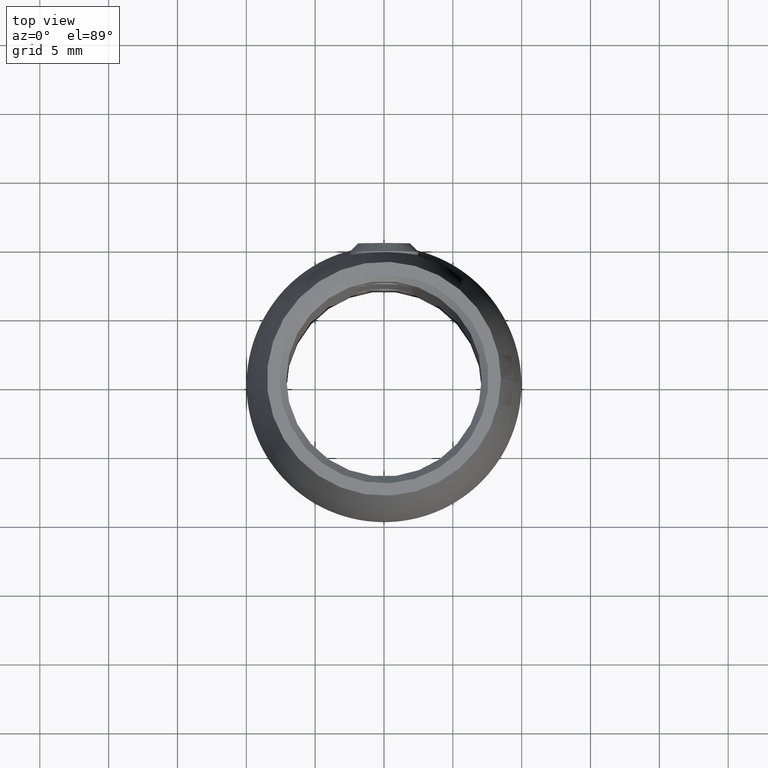
[diagram: clean part render]
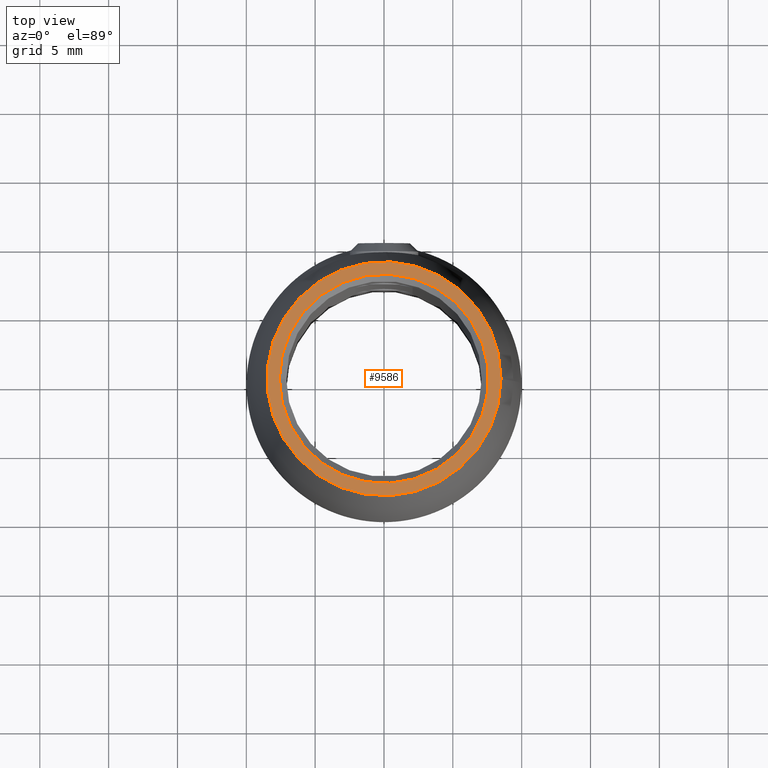
[diagram: same view with one face highlighted and labeled with its STEP entity id]
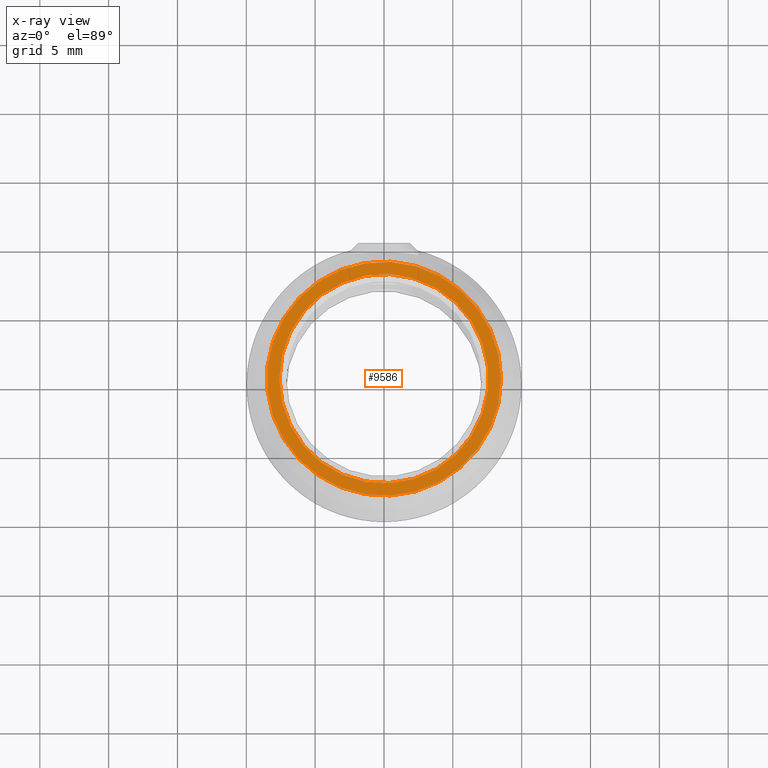
[diagram: x-ray of the same camera — body ghosted, the highlighted face saturated]
A machine part, top view. The second image highlights one B-rep face of the part: STEP entity #9586.
The next image is the same camera in x-ray: the body ghosted, the highlighted face saturated — about 0% of this face is hidden behind the body in this view.
In plain terms, the highlighted planar face has unit normal (0, 0, -1).
Its self-contained STEP definition (entity closure, byte-faithful):
#63 = DIRECTION ( 'NONE',  ( -1.000000000000000000, 0.000000000000000000, -0.000000000000000000 ) ) ;
#1119 = CARTESIAN_POINT ( 'NONE',  ( -7.600000000000009415, 0.000000000000000000, 22.50000000000000711 ) ) ;
#1994 = CARTESIAN_POINT ( 'NONE',  ( 0.000000000000000000, 8.499999999999996447, 22.50000000000000711 ) ) ;
#2034 = CARTESIAN_POINT ( 'NONE',  ( 8.500000000000007105, 0.000000000000000000, 22.50000000000001776 ) ) ;
#2591 = ORIENTED_EDGE ( 'NONE', *, *, #10443, .T. ) ;
#2920 = PLANE ( 'NONE',  #9773 ) ;
#3527 = CARTESIAN_POINT ( 'NONE',  ( 0.000000000000000000, 0.000000000000000000, 22.50000000000001776 ) ) ;
#3578 = CIRCLE ( 'NONE', #6757, 8.500000000000007105 ) ;
#3924 = AXIS2_PLACEMENT_3D ( 'NONE', #7633, #9682, #6672 ) ;
#4843 = CIRCLE ( 'NONE', #3924, 7.600000000000009415 ) ;
#5422 = DIRECTION ( 'NONE',  ( 1.000000000000000000, 0.000000000000000000, 0.000000000000000000 ) ) ;
#6438 = EDGE_CURVE ( 'NONE', #7147, #7147, #4843, .T. ) ;
#6672 = DIRECTION ( 'NONE',  ( -1.000000000000000000, 0.000000000000000000, 0.000000000000000000 ) ) ;
#6757 = AXIS2_PLACEMENT_3D ( 'NONE', #3527, #7418, #5422 ) ;
#7041 = FACE_BOUND ( 'NONE', #12119, .T. ) ;
#7147 = VERTEX_POINT ( 'NONE', #1119 ) ;
#7232 = ORIENTED_EDGE ( 'NONE', *, *, #6438, .T. ) ;
#7418 = DIRECTION ( 'NONE',  ( -0.000000000000000000, -0.000000000000000000, 1.000000000000000000 ) ) ;
#7633 = CARTESIAN_POINT ( 'NONE',  ( 0.000000000000000000, 0.000000000000000000, 22.50000000000000711 ) ) ;
#8268 = EDGE_LOOP ( 'NONE', ( #2591 ) ) ;
#9586 = ADVANCED_FACE ( 'NONE', ( #7041, #9744 ), #2920, .F. ) ;
#9682 = DIRECTION ( 'NONE',  ( 0.000000000000000000, 0.000000000000000000, -1.000000000000000000 ) ) ;
#9744 = FACE_OUTER_BOUND ( 'NONE', #8268, .T. ) ;
#9773 = AXIS2_PLACEMENT_3D ( 'NONE', #1994, #12409, #63 ) ;
#10443 = EDGE_CURVE ( 'NONE', #11912, #11912, #3578, .T. ) ;
#11912 = VERTEX_POINT ( 'NONE', #2034 ) ;
#12119 = EDGE_LOOP ( 'NONE', ( #7232 ) ) ;
#12409 = DIRECTION ( 'NONE',  ( 0.000000000000000000, 0.000000000000000000, -1.000000000000000000 ) ) ;